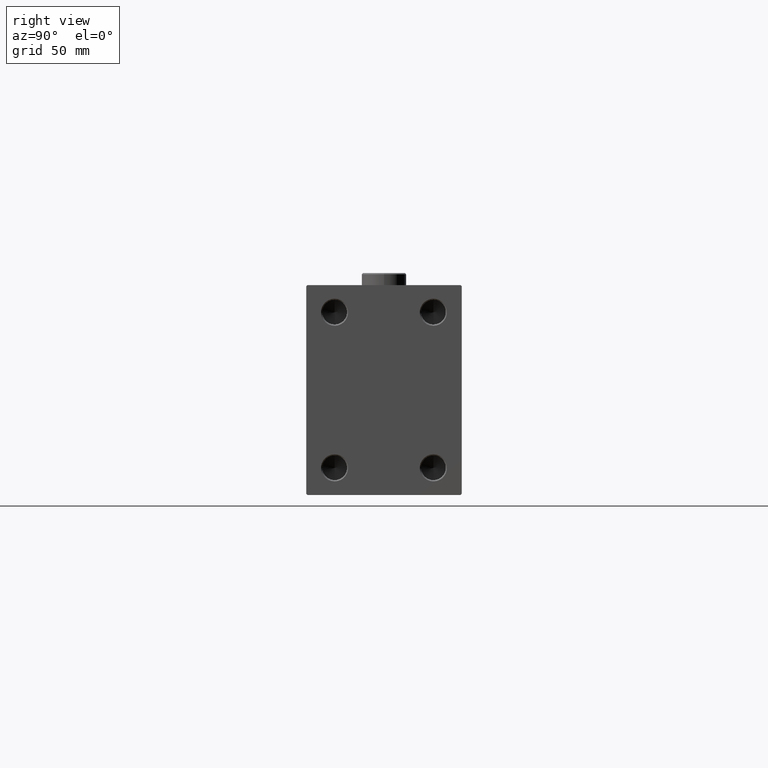
[diagram: clean part render]
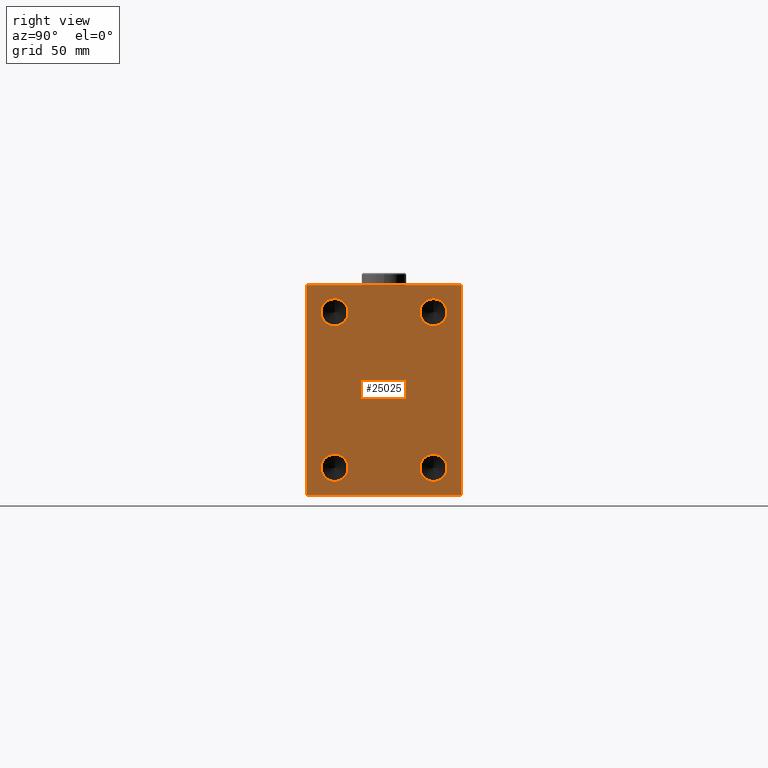
[diagram: same view with one face highlighted and labeled with its STEP entity id]
A machine part, right view. The second image highlights one B-rep face of the part: STEP entity #25025.
In plain terms, the highlighted planar face has unit normal (1, 0, 0).
Its self-contained STEP definition (entity closure, byte-faithful):
#52 = VERTEX_POINT ( 'NONE', #28135 ) ;
#68 = ORIENTED_EDGE ( 'NONE', *, *, #43475, .T. ) ;
#71 = FACE_BOUND ( 'NONE', #9630, .T. ) ;
#250 = CARTESIAN_POINT ( 'NONE',  ( 263.0000000000000000, -20.00000000000000355, -31.50000000000000000 ) ) ;
#1545 = EDGE_CURVE ( 'NONE', #35239, #33212, #42136, .T. ) ;
#1857 = EDGE_CURVE ( 'NONE', #9073, #22701, #12684, .T. ) ;
#2627 = LINE ( 'NONE', #17159, #38762 ) ;
#2756 = EDGE_CURVE ( 'NONE', #44968, #19607, #16424, .T. ) ;
#2782 = DIRECTION ( 'NONE',  ( 0.000000000000000000, 0.000000000000000000, -1.000000000000000000 ) ) ;
#3038 = DIRECTION ( 'NONE',  ( 0.000000000000000000, 0.000000000000000000, -1.000000000000000000 ) ) ;
#3217 = CARTESIAN_POINT ( 'NONE',  ( 263.0000000000000000, -20.00000000000000355, -31.50000000000000000 ) ) ;
#3313 = VECTOR ( 'NONE', #6864, 1000.000000000000000 ) ;
#3535 = PLANE ( 'NONE',  #14472 ) ;
#4344 = CARTESIAN_POINT ( 'NONE',  ( 263.0000000000000000, -30.99999999999997158, -42.50000000000000711 ) ) ;
#4594 = AXIS2_PLACEMENT_3D ( 'NONE', #250, #24021, #3038 ) ;
#6024 = LINE ( 'NONE', #6254, #18124 ) ;
#6254 = CARTESIAN_POINT ( 'NONE',  ( 263.0000000000000000, 36.74999999999999289, -36.74999999999999289 ) ) ;
#6296 = EDGE_CURVE ( 'NONE', #27393, #34349, #24613, .T. ) ;
#6418 = VECTOR ( 'NONE', #13005, 1000.000000000000000 ) ;
#6690 = CARTESIAN_POINT ( 'NONE',  ( 263.0000000000000000, 19.99999999999999645, 36.99999999999995026 ) ) ;
#6797 = CARTESIAN_POINT ( 'NONE',  ( 263.0000000000000000, -36.75000000000083134, 36.74999999999879208 ) ) ;
#6864 = DIRECTION ( 'NONE',  ( -0.000000000000000000, -0.7071067811865671127, 0.7071067811865279218 ) ) ;
#7229 = FACE_BOUND ( 'NONE', #19822, .T. ) ;
#7368 = ORIENTED_EDGE ( 'NONE', *, *, #27010, .F. ) ;
#8524 = EDGE_CURVE ( 'NONE', #12514, #33306, #13646, .T. ) ;
#8825 = CARTESIAN_POINT ( 'NONE',  ( 263.0000000000000000, -36.75000000000020606, -36.74999999999970157 ) ) ;
#9073 = VERTEX_POINT ( 'NONE', #25625 ) ;
#9145 = AXIS2_PLACEMENT_3D ( 'NONE', #26986, #9251, #2782 ) ;
#9251 = DIRECTION ( 'NONE',  ( 1.000000000000000000, -0.000000000000000000, -0.000000000000000000 ) ) ;
#9285 = CARTESIAN_POINT ( 'NONE',  ( 263.0000000000000000, 31.50000000000000000, 42.49999999999999289 ) ) ;
#9630 = EDGE_LOOP ( 'NONE', ( #7368, #13823 ) ) ;
#9640 = DIRECTION ( 'NONE',  ( 0.000000000000000000, 0.000000000000000000, -1.000000000000000000 ) ) ;
#9670 = EDGE_CURVE ( 'NONE', #33212, #35239, #40041, .T. ) ;
#10483 = LINE ( 'NONE', #32333, #18183 ) ;
#10895 = ORIENTED_EDGE ( 'NONE', *, *, #6296, .F. ) ;
#11020 = EDGE_LOOP ( 'NONE', ( #19525, #44777, #68, #43257, #40318, #25923, #44252, #35791 ) ) ;
#11140 = DIRECTION ( 'NONE',  ( 0.000000000000000000, 0.000000000000000000, -1.000000000000000000 ) ) ;
#11879 = CARTESIAN_POINT ( 'NONE',  ( 263.0000000000000000, -20.00000000000000355, 36.99999999999995026 ) ) ;
#11970 = CARTESIAN_POINT ( 'NONE',  ( 263.0000000000000000, 19.99999999999999645, 26.00000000000004619 ) ) ;
#12056 = EDGE_LOOP ( 'NONE', ( #10895, #34402 ) ) ;
#12210 = AXIS2_PLACEMENT_3D ( 'NONE', #27151, #41195, #9640 ) ;
#12307 = EDGE_CURVE ( 'NONE', #32266, #44968, #13072, .T. ) ;
#12514 = VERTEX_POINT ( 'NONE', #11879 ) ;
#12684 = CIRCLE ( 'NONE', #4594, 5.499999999999976907 ) ;
#13003 = DIRECTION ( 'NONE',  ( 0.000000000000000000, 1.000000000000000000, 0.000000000000000000 ) ) ;
#13005 = DIRECTION ( 'NONE',  ( 0.000000000000000000, -0.7071067811865279218, -0.7071067811865671127 ) ) ;
#13072 = LINE ( 'NONE', #45107, #3313 ) ;
#13307 = CARTESIAN_POINT ( 'NONE',  ( 263.0000000000000000, -30.99999999999994316, 42.49999999999998579 ) ) ;
#13472 = LINE ( 'NONE', #6797, #6418 ) ;
#13646 = CIRCLE ( 'NONE', #24678, 5.499999999999976907 ) ;
#13681 = CARTESIAN_POINT ( 'NONE',  ( 263.0000000000000000, 0.000000000000000000, 0.000000000000000000 ) ) ;
#13744 = CARTESIAN_POINT ( 'NONE',  ( 263.0000000000000000, -20.00000000000000355, 26.00000000000004619 ) ) ;
#13823 = ORIENTED_EDGE ( 'NONE', *, *, #1857, .F. ) ;
#14465 = EDGE_CURVE ( 'NONE', #34349, #27393, #37967, .T. ) ;
#14472 = AXIS2_PLACEMENT_3D ( 'NONE', #13681, #27741, #17370 ) ;
#14565 = ORIENTED_EDGE ( 'NONE', *, *, #8524, .F. ) ;
#16424 = LINE ( 'NONE', #9285, #32577 ) ;
#16695 = EDGE_CURVE ( 'NONE', #18674, #43838, #2627, .T. ) ;
#16701 = CIRCLE ( 'NONE', #42460, 5.499999999999976907 ) ;
#16966 = EDGE_CURVE ( 'NONE', #44053, #18674, #40379, .T. ) ;
#17145 = CARTESIAN_POINT ( 'NONE',  ( 263.0000000000000000, 30.99999999999991473, 42.49999999999999289 ) ) ;
#17159 = CARTESIAN_POINT ( 'NONE',  ( 263.0000000000000000, -31.50000000000000000, -42.50000000000000711 ) ) ;
#17370 = DIRECTION ( 'NONE',  ( 0.000000000000000000, 0.000000000000000000, -1.000000000000000000 ) ) ;
#17506 = DIRECTION ( 'NONE',  ( 0.000000000000000000, 0.000000000000000000, -1.000000000000000000 ) ) ;
#17958 = DIRECTION ( 'NONE',  ( 1.000000000000000000, -0.000000000000000000, -0.000000000000000000 ) ) ;
#18124 = VECTOR ( 'NONE', #41264, 1000.000000000000114 ) ;
#18183 = VECTOR ( 'NONE', #35122, 1000.000000000000000 ) ;
#18674 = VERTEX_POINT ( 'NONE', #4344 ) ;
#19304 = ORIENTED_EDGE ( 'NONE', *, *, #9670, .F. ) ;
#19525 = ORIENTED_EDGE ( 'NONE', *, *, #2756, .T. ) ;
#19607 = VERTEX_POINT ( 'NONE', #13307 ) ;
#19740 = DIRECTION ( 'NONE',  ( 0.000000000000000000, 0.000000000000000000, -1.000000000000000000 ) ) ;
#19822 = EDGE_LOOP ( 'NONE', ( #35537, #19304 ) ) ;
#21080 = LINE ( 'NONE', #35114, #25188 ) ;
#21287 = FACE_BOUND ( 'NONE', #12056, .T. ) ;
#22701 = VERTEX_POINT ( 'NONE', #32529 ) ;
#22878 = DIRECTION ( 'NONE',  ( -0.000000000000000000, 0.7071067811865426878, -0.7071067811865524577 ) ) ;
#24021 = DIRECTION ( 'NONE',  ( 1.000000000000000000, -0.000000000000000000, -0.000000000000000000 ) ) ;
#24051 = EDGE_CURVE ( 'NONE', #43838, #37189, #6024, .T. ) ;
#24192 = EDGE_LOOP ( 'NONE', ( #14565, #43316 ) ) ;
#24613 = CIRCLE ( 'NONE', #9145, 5.499999999999976907 ) ;
#24678 = AXIS2_PLACEMENT_3D ( 'NONE', #33550, #37227, #19740 ) ;
#24768 = EDGE_CURVE ( 'NONE', #33306, #12514, #16701, .T. ) ;
#25025 = ADVANCED_FACE ( 'NONE', ( #7229, #42246, #71, #21287, #45248 ), #3535, .T. ) ;
#25188 = VECTOR ( 'NONE', #11140, 1000.000000000000000 ) ;
#25417 = AXIS2_PLACEMENT_3D ( 'NONE', #41091, #36106, #43249 ) ;
#25625 = CARTESIAN_POINT ( 'NONE',  ( 263.0000000000000000, -20.00000000000000355, -36.99999999999995026 ) ) ;
#25923 = ORIENTED_EDGE ( 'NONE', *, *, #24051, .T. ) ;
#26225 = EDGE_CURVE ( 'NONE', #19607, #52, #13472, .T. ) ;
#26332 = EDGE_CURVE ( 'NONE', #37189, #32266, #10483, .T. ) ;
#26986 = CARTESIAN_POINT ( 'NONE',  ( 263.0000000000000000, 19.99999999999999645, -31.50000000000000000 ) ) ;
#27010 = EDGE_CURVE ( 'NONE', #22701, #9073, #30748, .T. ) ;
#27151 = CARTESIAN_POINT ( 'NONE',  ( 263.0000000000000000, 19.99999999999999645, -31.50000000000000000 ) ) ;
#27393 = VERTEX_POINT ( 'NONE', #31674 ) ;
#27741 = DIRECTION ( 'NONE',  ( 1.000000000000000000, 0.000000000000000000, 0.000000000000000000 ) ) ;
#28135 = CARTESIAN_POINT ( 'NONE',  ( 263.0000000000000000, -31.50000000000000000, 41.99999999999990763 ) ) ;
#30351 = AXIS2_PLACEMENT_3D ( 'NONE', #42313, #31028, #39522 ) ;
#30470 = DIRECTION ( 'NONE',  ( 0.000000000000000000, -1.000000000000000000, -1.101411730778925171E-16 ) ) ;
#30748 = CIRCLE ( 'NONE', #45460, 5.499999999999976907 ) ;
#31028 = DIRECTION ( 'NONE',  ( 1.000000000000000000, -0.000000000000000000, -0.000000000000000000 ) ) ;
#31479 = DIRECTION ( 'NONE',  ( 1.000000000000000000, -0.000000000000000000, -0.000000000000000000 ) ) ;
#31674 = CARTESIAN_POINT ( 'NONE',  ( 263.0000000000000000, 19.99999999999999645, -26.00000000000004619 ) ) ;
#32147 = VECTOR ( 'NONE', #22878, 1000.000000000000000 ) ;
#32266 = VERTEX_POINT ( 'NONE', #37514 ) ;
#32333 = CARTESIAN_POINT ( 'NONE',  ( 263.0000000000000000, 31.50000000000001421, -42.50000000000000711 ) ) ;
#32529 = CARTESIAN_POINT ( 'NONE',  ( 263.0000000000000000, -20.00000000000000355, -26.00000000000004619 ) ) ;
#32577 = VECTOR ( 'NONE', #30470, 1000.000000000000000 ) ;
#33212 = VERTEX_POINT ( 'NONE', #11970 ) ;
#33306 = VERTEX_POINT ( 'NONE', #13744 ) ;
#33550 = CARTESIAN_POINT ( 'NONE',  ( 263.0000000000000000, -20.00000000000000355, 31.50000000000000000 ) ) ;
#33785 = CARTESIAN_POINT ( 'NONE',  ( 263.0000000000000000, 30.99999999999998579, -42.50000000000000711 ) ) ;
#34349 = VERTEX_POINT ( 'NONE', #44643 ) ;
#34402 = ORIENTED_EDGE ( 'NONE', *, *, #14465, .F. ) ;
#34657 = CARTESIAN_POINT ( 'NONE',  ( 263.0000000000000000, 31.50000000000001421, -41.99999999999997868 ) ) ;
#35114 = CARTESIAN_POINT ( 'NONE',  ( 263.0000000000000000, -31.50000000000000000, 42.49999999999998579 ) ) ;
#35122 = DIRECTION ( 'NONE',  ( 0.000000000000000000, -1.632680918566406547E-16, 1.000000000000000000 ) ) ;
#35239 = VERTEX_POINT ( 'NONE', #6690 ) ;
#35379 = CARTESIAN_POINT ( 'NONE',  ( 263.0000000000000000, -20.00000000000000355, 31.50000000000000000 ) ) ;
#35537 = ORIENTED_EDGE ( 'NONE', *, *, #1545, .F. ) ;
#35791 = ORIENTED_EDGE ( 'NONE', *, *, #12307, .T. ) ;
#36106 = DIRECTION ( 'NONE',  ( 1.000000000000000000, -0.000000000000000000, -0.000000000000000000 ) ) ;
#37189 = VERTEX_POINT ( 'NONE', #34657 ) ;
#37227 = DIRECTION ( 'NONE',  ( 1.000000000000000000, -0.000000000000000000, -0.000000000000000000 ) ) ;
#37514 = CARTESIAN_POINT ( 'NONE',  ( 263.0000000000000000, 31.50000000000000000, 41.99999999999994316 ) ) ;
#37967 = CIRCLE ( 'NONE', #12210, 5.499999999999976907 ) ;
#38762 = VECTOR ( 'NONE', #13003, 1000.000000000000000 ) ;
#39522 = DIRECTION ( 'NONE',  ( 0.000000000000000000, 0.000000000000000000, -1.000000000000000000 ) ) ;
#40041 = CIRCLE ( 'NONE', #25417, 5.499999999999976907 ) ;
#40318 = ORIENTED_EDGE ( 'NONE', *, *, #16695, .T. ) ;
#40379 = LINE ( 'NONE', #8825, #32147 ) ;
#41091 = CARTESIAN_POINT ( 'NONE',  ( 263.0000000000000000, 19.99999999999999645, 31.50000000000000000 ) ) ;
#41195 = DIRECTION ( 'NONE',  ( 1.000000000000000000, -0.000000000000000000, -0.000000000000000000 ) ) ;
#41264 = DIRECTION ( 'NONE',  ( -0.000000000000000000, 0.7071067811865474617, 0.7071067811865474617 ) ) ;
#42136 = CIRCLE ( 'NONE', #30351, 5.499999999999976907 ) ;
#42246 = FACE_BOUND ( 'NONE', #24192, .T. ) ;
#42313 = CARTESIAN_POINT ( 'NONE',  ( 263.0000000000000000, 19.99999999999999645, 31.50000000000000000 ) ) ;
#42460 = AXIS2_PLACEMENT_3D ( 'NONE', #35379, #31479, #45537 ) ;
#42736 = CARTESIAN_POINT ( 'NONE',  ( 263.0000000000000000, -31.50000000000000000, -41.99999999999997158 ) ) ;
#43249 = DIRECTION ( 'NONE',  ( 0.000000000000000000, 0.000000000000000000, -1.000000000000000000 ) ) ;
#43257 = ORIENTED_EDGE ( 'NONE', *, *, #16966, .T. ) ;
#43316 = ORIENTED_EDGE ( 'NONE', *, *, #24768, .F. ) ;
#43475 = EDGE_CURVE ( 'NONE', #52, #44053, #21080, .T. ) ;
#43838 = VERTEX_POINT ( 'NONE', #33785 ) ;
#44053 = VERTEX_POINT ( 'NONE', #42736 ) ;
#44252 = ORIENTED_EDGE ( 'NONE', *, *, #26332, .T. ) ;
#44643 = CARTESIAN_POINT ( 'NONE',  ( 263.0000000000000000, 19.99999999999999645, -36.99999999999995026 ) ) ;
#44777 = ORIENTED_EDGE ( 'NONE', *, *, #26225, .T. ) ;
#44968 = VERTEX_POINT ( 'NONE', #17145 ) ;
#45107 = CARTESIAN_POINT ( 'NONE',  ( 263.0000000000000000, 36.74999999999909761, 36.75000000000113687 ) ) ;
#45248 = FACE_OUTER_BOUND ( 'NONE', #11020, .T. ) ;
#45460 = AXIS2_PLACEMENT_3D ( 'NONE', #3217, #17958, #17506 ) ;
#45537 = DIRECTION ( 'NONE',  ( 0.000000000000000000, 0.000000000000000000, -1.000000000000000000 ) ) ;